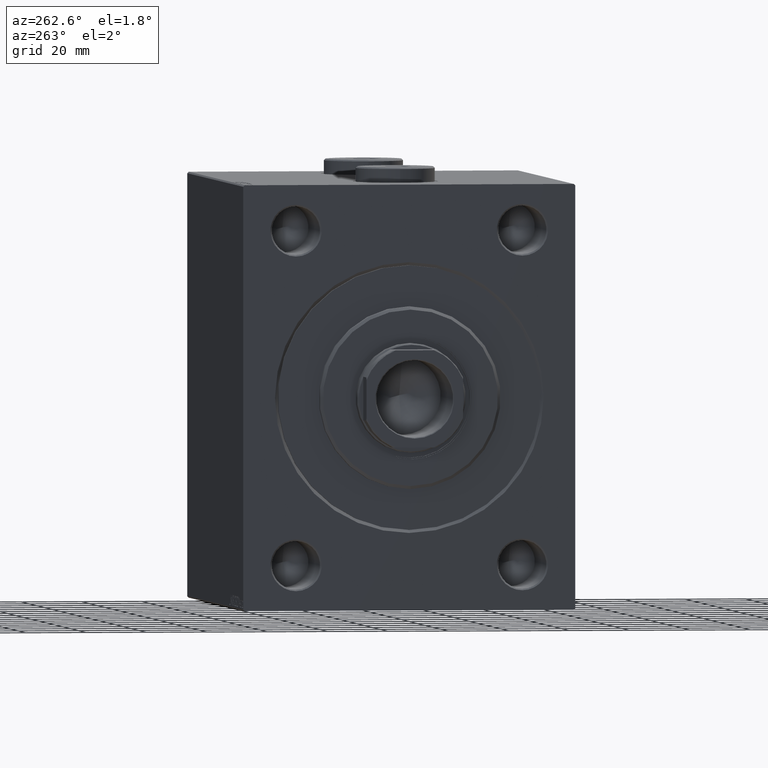
[diagram: clean part render]
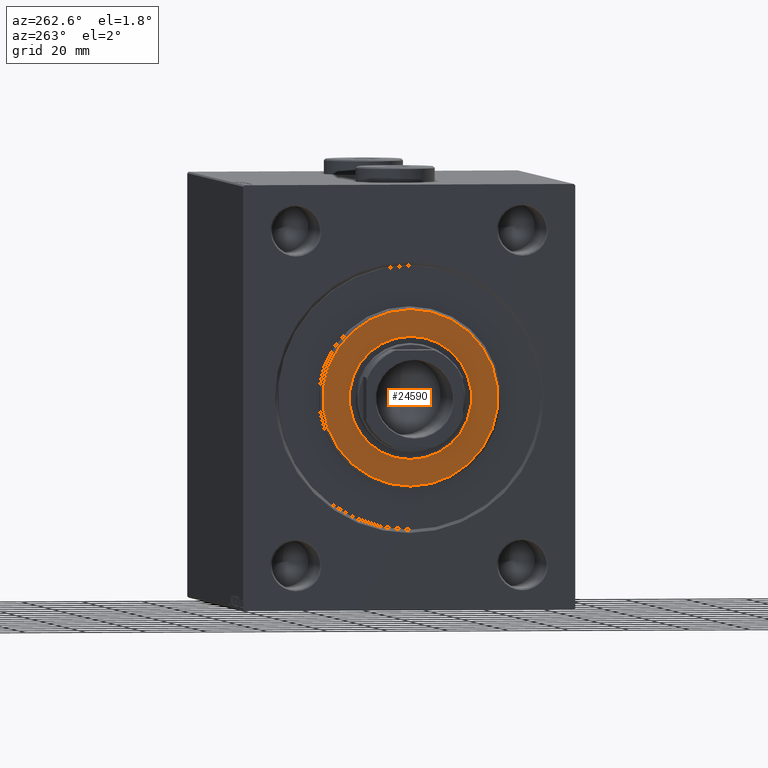
[diagram: same view with one face highlighted and labeled with its STEP entity id]
A machine part, auxiliary view. The second image highlights one B-rep face of the part: STEP entity #24590.
In plain terms, the highlighted planar face has unit normal (-1, 0, 0).
Its self-contained STEP definition (entity closure, byte-faithful):
#719 = EDGE_LOOP ( 'NONE', ( #27361, #27478 ) ) ;
#2137 = DIRECTION ( 'NONE',  ( 0.000000000000000000, 0.000000000000000000, -1.000000000000000000 ) ) ;
#2197 = CARTESIAN_POINT ( 'NONE',  ( 3.000000000000000000, 0.000000000000000000, 0.000000000000000000 ) ) ;
#3548 = FACE_OUTER_BOUND ( 'NONE', #719, .T. ) ;
#4173 = CARTESIAN_POINT ( 'NONE',  ( 3.000000000000000000, 0.000000000000000000, 0.000000000000000000 ) ) ;
#4324 = ORIENTED_EDGE ( 'NONE', *, *, #23570, .F. ) ;
#6190 = DIRECTION ( 'NONE',  ( 1.000000000000000000, -0.000000000000000000, 0.000000000000000000 ) ) ;
#7249 = DIRECTION ( 'NONE',  ( 0.000000000000000000, 0.000000000000000000, -1.000000000000000000 ) ) ;
#9356 = VERTEX_POINT ( 'NONE', #19715 ) ;
#10785 = CARTESIAN_POINT ( 'NONE',  ( 3.000000000000000000, 3.612708057484691604E-15, -28.99999999999999289 ) ) ;
#12003 = DIRECTION ( 'NONE',  ( 0.000000000000000000, 0.000000000000000000, -1.000000000000000000 ) ) ;
#12596 = DIRECTION ( 'NONE',  ( 0.000000000000000000, 0.000000000000000000, -1.000000000000000000 ) ) ;
#12885 = CIRCLE ( 'NONE', #26171, 28.99999999999999289 ) ;
#13701 = AXIS2_PLACEMENT_3D ( 'NONE', #14390, #35427, #7249 ) ;
#13734 = CIRCLE ( 'NONE', #16673, 28.99999999999999289 ) ;
#14390 = CARTESIAN_POINT ( 'NONE',  ( 3.000000000000000000, 0.000000000000000000, 0.000000000000000000 ) ) ;
#16673 = AXIS2_PLACEMENT_3D ( 'NONE', #4173, #28868, #12003 ) ;
#17629 = PLANE ( 'NONE',  #13701 ) ;
#18975 = EDGE_CURVE ( 'NONE', #9356, #37383, #12885, .T. ) ;
#19297 = DIRECTION ( 'NONE',  ( 1.000000000000000000, 0.000000000000000000, 0.000000000000000000 ) ) ;
#19715 = CARTESIAN_POINT ( 'NONE',  ( 3.000000000000000000, 0.000000000000000000, 28.99999999999999289 ) ) ;
#23063 = CARTESIAN_POINT ( 'NONE',  ( 3.000000000000000000, 0.000000000000000000, 0.000000000000000000 ) ) ;
#23570 = EDGE_CURVE ( 'NONE', #35265, #36933, #29133, .T. ) ;
#24590 = ADVANCED_FACE ( 'NONE', ( #3548, #27570 ), #17629, .T. ) ;
#26171 = AXIS2_PLACEMENT_3D ( 'NONE', #23063, #6190, #30214 ) ;
#26201 = EDGE_CURVE ( 'NONE', #37383, #9356, #13734, .T. ) ;
#27361 = ORIENTED_EDGE ( 'NONE', *, *, #18975, .T. ) ;
#27478 = ORIENTED_EDGE ( 'NONE', *, *, #26201, .T. ) ;
#27570 = FACE_BOUND ( 'NONE', #29418, .T. ) ;
#27847 = AXIS2_PLACEMENT_3D ( 'NONE', #40487, #40711, #2137 ) ;
#28868 = DIRECTION ( 'NONE',  ( 1.000000000000000000, -0.000000000000000000, 0.000000000000000000 ) ) ;
#28986 = CARTESIAN_POINT ( 'NONE',  ( 3.000000000000000000, 2.479909768273390300E-15, 20.25000000000000000 ) ) ;
#29133 = CIRCLE ( 'NONE', #30617, 20.25000000000000000 ) ;
#29418 = EDGE_LOOP ( 'NONE', ( #40268, #4324 ) ) ;
#30214 = DIRECTION ( 'NONE',  ( 0.000000000000000000, 0.000000000000000000, -1.000000000000000000 ) ) ;
#30581 = EDGE_CURVE ( 'NONE', #36933, #35265, #33003, .T. ) ;
#30617 = AXIS2_PLACEMENT_3D ( 'NONE', #2197, #19297, #12596 ) ;
#33003 = CIRCLE ( 'NONE', #27847, 20.25000000000000000 ) ;
#35265 = VERTEX_POINT ( 'NONE', #28986 ) ;
#35427 = DIRECTION ( 'NONE',  ( 1.000000000000000000, -0.000000000000000000, 0.000000000000000000 ) ) ;
#36933 = VERTEX_POINT ( 'NONE', #39756 ) ;
#37383 = VERTEX_POINT ( 'NONE', #10785 ) ;
#39756 = CARTESIAN_POINT ( 'NONE',  ( 3.000000000000000000, 0.000000000000000000, -20.25000000000000000 ) ) ;
#40268 = ORIENTED_EDGE ( 'NONE', *, *, #30581, .F. ) ;
#40487 = CARTESIAN_POINT ( 'NONE',  ( 3.000000000000000000, 0.000000000000000000, 0.000000000000000000 ) ) ;
#40711 = DIRECTION ( 'NONE',  ( 1.000000000000000000, 0.000000000000000000, 0.000000000000000000 ) ) ;